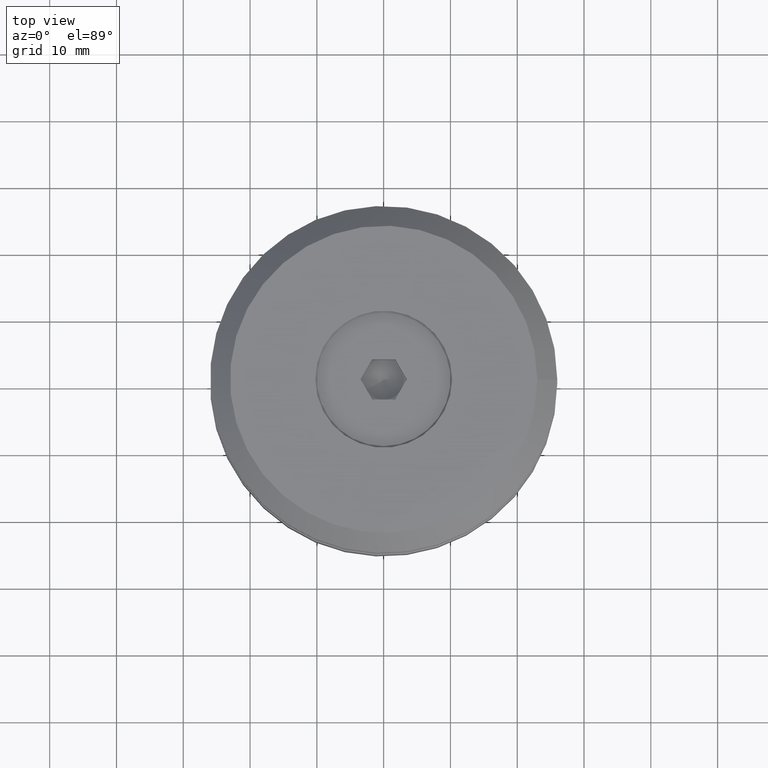
[diagram: clean part render]
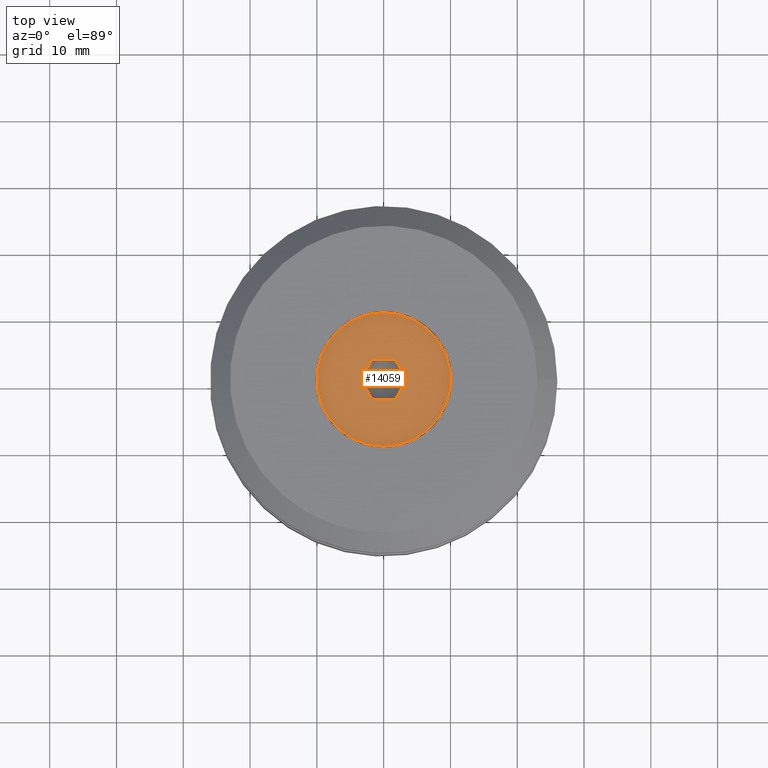
[diagram: same view with one face highlighted and labeled with its STEP entity id]
A machine part, top view. The second image highlights one B-rep face of the part: STEP entity #14059.
In plain terms, the highlighted planar face has unit normal (-0, -0, 1).
Its self-contained STEP definition (entity closure, byte-faithful):
#41 = VERTEX_POINT ( 'NONE', #7739 ) ;
#432 = CARTESIAN_POINT ( 'NONE',  ( 0.0000000000000000000, 1.799711739194229100E-031, -1.469576158976823900E-015 ) ) ;
#600 = ORIENTED_EDGE ( 'NONE', *, *, #3564, .F. ) ;
#636 = LINE ( 'NONE', #7579, #3070 ) ;
#770 = ORIENTED_EDGE ( 'NONE', *, *, #2689, .F. ) ;
#984 = DIRECTION ( 'NONE',  ( -0.5000000000000000000, -0.8660254037844386000, -0.0000000000000000000 ) ) ;
#1076 = CARTESIAN_POINT ( 'NONE',  ( 1.732050807568875900, -3.000000000000000000, -0.0000000000000000000 ) ) ;
#1412 = CARTESIAN_POINT ( 'NONE',  ( -1.732050807568879200, -3.000000000000000000, 0.0000000000000000000 ) ) ;
#2056 = CARTESIAN_POINT ( 'NONE',  ( -1.732050807568877200, 3.000000000000000000, 0.0000000000000000000 ) ) ;
#2110 = EDGE_CURVE ( 'NONE', #10250, #10081, #636, .T. ) ;
#2633 = LINE ( 'NONE', #1076, #2852 ) ;
#2689 = EDGE_CURVE ( 'NONE', #41, #14103, #6118, .T. ) ;
#2852 = VECTOR ( 'NONE', #12925, 1000.000000000000000 ) ;
#3070 = VECTOR ( 'NONE', #984, 1000.000000000000200 ) ;
#3109 = DIRECTION ( 'NONE',  ( -0.0000000000000000000, 1.224646799147353200E-016, -1.000000000000000000 ) ) ;
#3325 = VECTOR ( 'NONE', #6874, 1000.000000000000000 ) ;
#3441 = DIRECTION ( 'NONE',  ( 0.0000000000000000000, 1.000000000000000000, 1.224646799147353200E-016 ) ) ;
#3541 = LINE ( 'NONE', #8803, #10492 ) ;
#3564 = EDGE_CURVE ( 'NONE', #14103, #9910, #11904, .T. ) ;
#4214 = CARTESIAN_POINT ( 'NONE',  ( -1.732050807568877200, 3.000000000000000000, 0.0000000000000000000 ) ) ;
#4452 = AXIS2_PLACEMENT_3D ( 'NONE', #432, #3109, #13582 ) ;
#5020 = CARTESIAN_POINT ( 'NONE',  ( -1.732050807568879200, -3.000000000000000000, 0.0000000000000000000 ) ) ;
#5422 = EDGE_CURVE ( 'NONE', #9910, #10250, #3541, .T. ) ;
#5484 = CARTESIAN_POINT ( 'NONE',  ( 1.732050807568877900, 2.999999999999999600, 0.0000000000000000000 ) ) ;
#6118 = LINE ( 'NONE', #9978, #8157 ) ;
#6874 = DIRECTION ( 'NONE',  ( 1.000000000000000000, -1.251928832280966200E-016, 0.0000000000000000000 ) ) ;
#7236 = EDGE_LOOP ( 'NONE', ( #16880, #9890, #7492, #12100, #600, #770 ) ) ;
#7437 = EDGE_CURVE ( 'NONE', #14206, #41, #8652, .T. ) ;
#7492 = ORIENTED_EDGE ( 'NONE', *, *, #2110, .F. ) ;
#7579 = CARTESIAN_POINT ( 'NONE',  ( 3.464101615137753900, 9.175841392531609800E-016, 0.0000000000000000000 ) ) ;
#7739 = CARTESIAN_POINT ( 'NONE',  ( -3.464101615137756200, -1.734723475976807100E-015, -7.347880794884122700E-016 ) ) ;
#8157 = VECTOR ( 'NONE', #15119, 1000.000000000000100 ) ;
#8652 = LINE ( 'NONE', #5020, #16409 ) ;
#8803 = CARTESIAN_POINT ( 'NONE',  ( 1.732050807568877900, 2.999999999999999600, 0.0000000000000000000 ) ) ;
#9017 = CARTESIAN_POINT ( 'NONE',  ( 3.464101615137753900, 9.175841392531609800E-016, 0.0000000000000000000 ) ) ;
#9890 = ORIENTED_EDGE ( 'NONE', *, *, #16266, .F. ) ;
#9910 = VERTEX_POINT ( 'NONE', #5484 ) ;
#9930 = PLANE ( 'NONE',  #9974 ) ;
#9974 = AXIS2_PLACEMENT_3D ( 'NONE', #13711, #16400, #3441 ) ;
#9978 = CARTESIAN_POINT ( 'NONE',  ( -3.464101615137755700, -8.852369453887684200E-016, 0.0000000000000000000 ) ) ;
#10081 = VERTEX_POINT ( 'NONE', #11065 ) ;
#10250 = VERTEX_POINT ( 'NONE', #9017 ) ;
#10492 = VECTOR ( 'NONE', #12909, 999.9999999999998900 ) ;
#11065 = CARTESIAN_POINT ( 'NONE',  ( 1.732050807568875900, -3.000000000000000000, -0.0000000000000000000 ) ) ;
#11434 = CIRCLE ( 'NONE', #4452, 10.00000000000000000 ) ;
#11904 = LINE ( 'NONE', #4214, #3325 ) ;
#12073 = FACE_BOUND ( 'NONE', #7236, .T. ) ;
#12100 = ORIENTED_EDGE ( 'NONE', *, *, #5422, .F. ) ;
#12714 = ORIENTED_EDGE ( 'NONE', *, *, #13049, .T. ) ;
#12909 = DIRECTION ( 'NONE',  ( 0.4999999999999999400, -0.8660254037844387100, 0.0000000000000000000 ) ) ;
#12925 = DIRECTION ( 'NONE',  ( -1.000000000000000000, 0.0000000000000000000, 0.0000000000000000000 ) ) ;
#13049 = EDGE_CURVE ( 'NONE', #14453, #14453, #11434, .T. ) ;
#13282 = FACE_OUTER_BOUND ( 'NONE', #16761, .T. ) ;
#13582 = DIRECTION ( 'NONE',  ( 0.0000000000000000000, 1.000000000000000000, 1.224646799147353200E-016 ) ) ;
#13711 = CARTESIAN_POINT ( 'NONE',  ( 0.0000000000000000000, 10.00000000000000000, 4.898587196589412800E-016 ) ) ;
#14059 = ADVANCED_FACE ( 'NONE', ( #12073, #13282 ), #9930, .T. ) ;
#14103 = VERTEX_POINT ( 'NONE', #2056 ) ;
#14125 = DIRECTION ( 'NONE',  ( -0.4999999999999998900, 0.8660254037844386000, 0.0000000000000000000 ) ) ;
#14206 = VERTEX_POINT ( 'NONE', #1412 ) ;
#14453 = VERTEX_POINT ( 'NONE', #15688 ) ;
#15119 = DIRECTION ( 'NONE',  ( 0.5000000000000002200, 0.8660254037844384900, 0.0000000000000000000 ) ) ;
#15688 = CARTESIAN_POINT ( 'NONE',  ( 0.0000000000000000000, 10.00000000000000000, -2.449293598294706900E-016 ) ) ;
#16266 = EDGE_CURVE ( 'NONE', #10081, #14206, #2633, .T. ) ;
#16400 = DIRECTION ( 'NONE',  ( -0.0000000000000000000, 1.224646799147353200E-016, -1.000000000000000000 ) ) ;
#16409 = VECTOR ( 'NONE', #14125, 1000.000000000000200 ) ;
#16761 = EDGE_LOOP ( 'NONE', ( #12714 ) ) ;
#16880 = ORIENTED_EDGE ( 'NONE', *, *, #7437, .F. ) ;